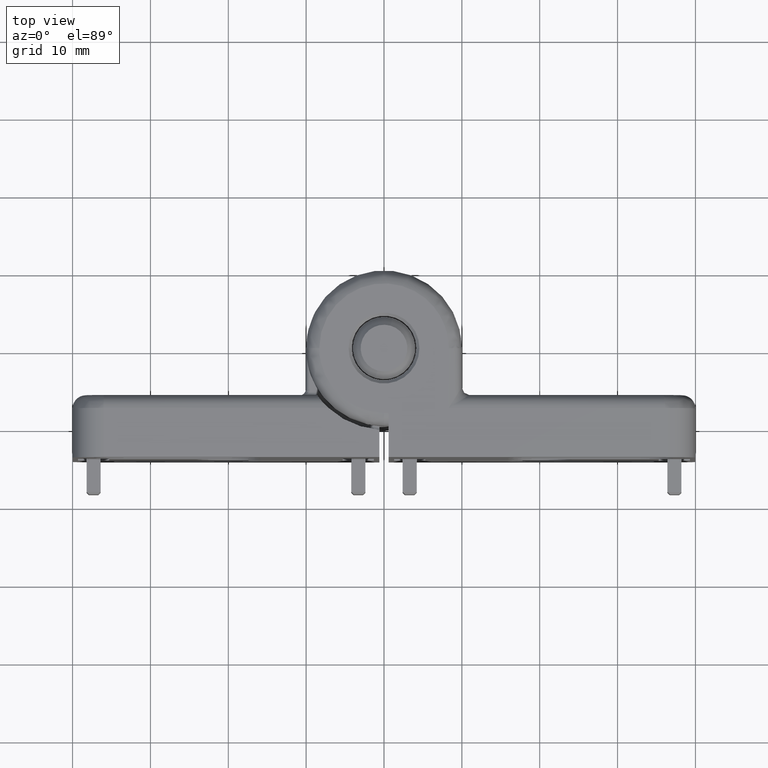
[diagram: clean part render]
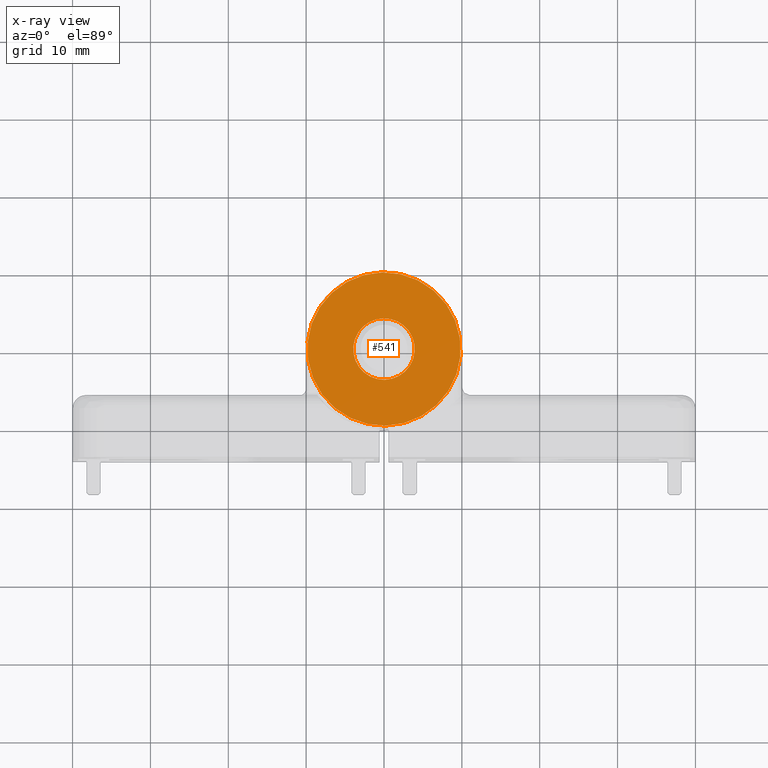
[diagram: x-ray — body ghosted, one internal face saturated and labeled with its STEP entity id]
A machine part, top view, then the same camera in x-ray: the body is ghosted and one INTERNAL B-rep face — a face not visible from any outside direction — is saturated and labeled: STEP entity #541.
In plain terms, the highlighted planar face has unit normal (0, -0, 1).
Its self-contained STEP definition (entity closure, byte-faithful):
#19 = FACE_OUTER_BOUND ( 'NONE', #2938, .T. ) ;
#78 = DIRECTION ( 'NONE',  ( 0.0000000000000000000, 0.0000000000000000000, 1.000000000000000000 ) ) ;
#102 = ORIENTED_EDGE ( 'NONE', *, *, #1833, .F. ) ;
#289 = ORIENTED_EDGE ( 'NONE', *, *, #2416, .F. ) ;
#455 = AXIS2_PLACEMENT_3D ( 'NONE', #1173, #3395, #3343 ) ;
#541 = ADVANCED_FACE ( 'NONE', ( #19, #3887 ), #4208, .F. ) ;
#644 = VERTEX_POINT ( 'NONE', #4789 ) ;
#650 = CIRCLE ( 'NONE', #2417, 3.950000000000000200 ) ;
#729 = CIRCLE ( 'NONE', #455, 9.849999999999999600 ) ;
#1173 = CARTESIAN_POINT ( 'NONE',  ( 0.0000000000000000000, -1.800000000000000300, 0.0000000000000000000 ) ) ;
#1529 = AXIS2_PLACEMENT_3D ( 'NONE', #2659, #1872, #78 ) ;
#1537 = DIRECTION ( 'NONE',  ( -0.0000000000000000000, -1.000000000000000000, -0.0000000000000000000 ) ) ;
#1574 = CARTESIAN_POINT ( 'NONE',  ( 0.0000000000000000000, -1.800000000000000300, 0.0000000000000000000 ) ) ;
#1833 = EDGE_CURVE ( 'NONE', #2312, #2462, #4676, .T. ) ;
#1872 = DIRECTION ( 'NONE',  ( 0.0000000000000000000, 1.000000000000000000, 0.0000000000000000000 ) ) ;
#1886 = ORIENTED_EDGE ( 'NONE', *, *, #2767, .F. ) ;
#2016 = EDGE_CURVE ( 'NONE', #644, #3280, #650, .T. ) ;
#2030 = CARTESIAN_POINT ( 'NONE',  ( 0.0000000000000000000, -1.800000000000000300, 3.950000000000000200 ) ) ;
#2064 = DIRECTION ( 'NONE',  ( 0.0000000000000000000, 1.000000000000000000, 0.0000000000000000000 ) ) ;
#2312 = VERTEX_POINT ( 'NONE', #4989 ) ;
#2416 = EDGE_CURVE ( 'NONE', #3280, #644, #3486, .T. ) ;
#2417 = AXIS2_PLACEMENT_3D ( 'NONE', #5026, #1537, #2864 ) ;
#2462 = VERTEX_POINT ( 'NONE', #3350 ) ;
#2501 = DIRECTION ( 'NONE',  ( 0.0000000000000000000, -0.0000000000000000000, 1.000000000000000000 ) ) ;
#2659 = CARTESIAN_POINT ( 'NONE',  ( 0.0000000000000000000, -1.800000000000000300, 0.0000000000000000000 ) ) ;
#2767 = EDGE_CURVE ( 'NONE', #2462, #2312, #729, .T. ) ;
#2864 = DIRECTION ( 'NONE',  ( 0.0000000000000000000, 0.0000000000000000000, 1.000000000000000000 ) ) ;
#2938 = EDGE_LOOP ( 'NONE', ( #1886, #102 ) ) ;
#3118 = EDGE_LOOP ( 'NONE', ( #289, #5329 ) ) ;
#3280 = VERTEX_POINT ( 'NONE', #2030 ) ;
#3343 = DIRECTION ( 'NONE',  ( 0.0000000000000000000, 0.0000000000000000000, 1.000000000000000000 ) ) ;
#3350 = CARTESIAN_POINT ( 'NONE',  ( 0.0000000000000000000, -1.800000000000000300, 9.849999999999999600 ) ) ;
#3395 = DIRECTION ( 'NONE',  ( 0.0000000000000000000, 1.000000000000000000, 0.0000000000000000000 ) ) ;
#3486 = CIRCLE ( 'NONE', #4778, 3.950000000000000200 ) ;
#3784 = CARTESIAN_POINT ( 'NONE',  ( 0.0000000000000000000, -1.800000000000000300, 0.0000000000000000000 ) ) ;
#3887 = FACE_BOUND ( 'NONE', #3118, .T. ) ;
#4208 = PLANE ( 'NONE',  #4959 ) ;
#4676 = CIRCLE ( 'NONE', #1529, 9.849999999999999600 ) ;
#4778 = AXIS2_PLACEMENT_3D ( 'NONE', #1574, #5474, #5564 ) ;
#4789 = CARTESIAN_POINT ( 'NONE',  ( 4.837354856632045100E-016, -1.800000000000000300, -3.950000000000000200 ) ) ;
#4959 = AXIS2_PLACEMENT_3D ( 'NONE', #3784, #2064, #2501 ) ;
#4989 = CARTESIAN_POINT ( 'NONE',  ( 1.206277097160142800E-015, -1.800000000000000300, -9.849999999999999600 ) ) ;
#5026 = CARTESIAN_POINT ( 'NONE',  ( 0.0000000000000000000, -1.800000000000000300, 0.0000000000000000000 ) ) ;
#5329 = ORIENTED_EDGE ( 'NONE', *, *, #2016, .F. ) ;
#5474 = DIRECTION ( 'NONE',  ( -0.0000000000000000000, -1.000000000000000000, -0.0000000000000000000 ) ) ;
#5564 = DIRECTION ( 'NONE',  ( 0.0000000000000000000, 0.0000000000000000000, 1.000000000000000000 ) ) ;